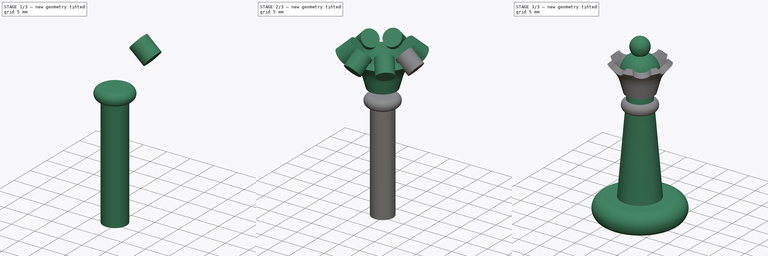
[diagram: build sequence overview — one tinted view per stage of 3, left to right]
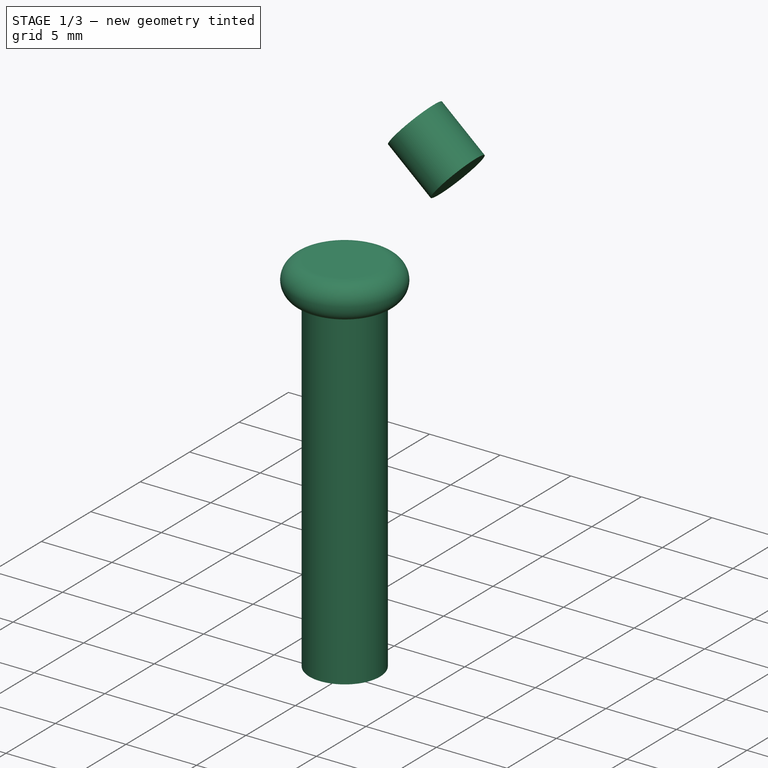
[diagram: stage 1 of 3 — iso view after this stage's code; geometry added in this stage tinted green]
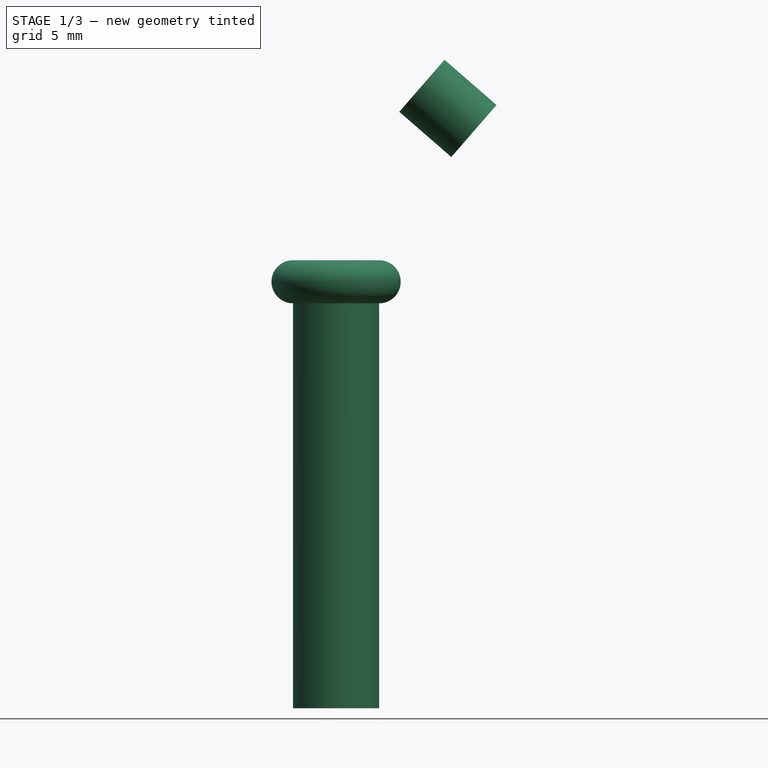
[diagram: stage 1 of 3 — front view after this stage's code; geometry added in this stage tinted green]
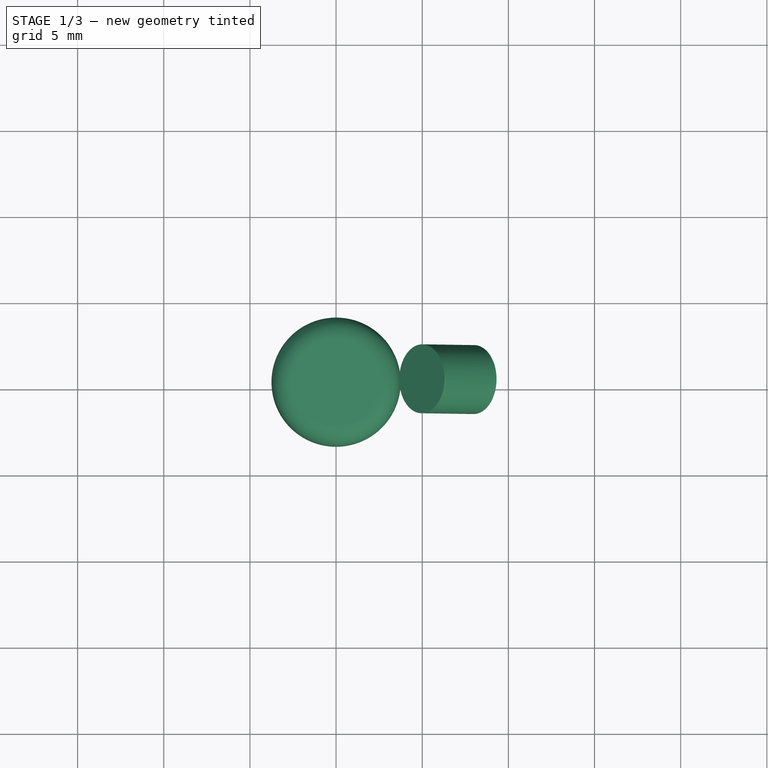
[diagram: stage 1 of 3 — top view after this stage's code; geometry added in this stage tinted green]
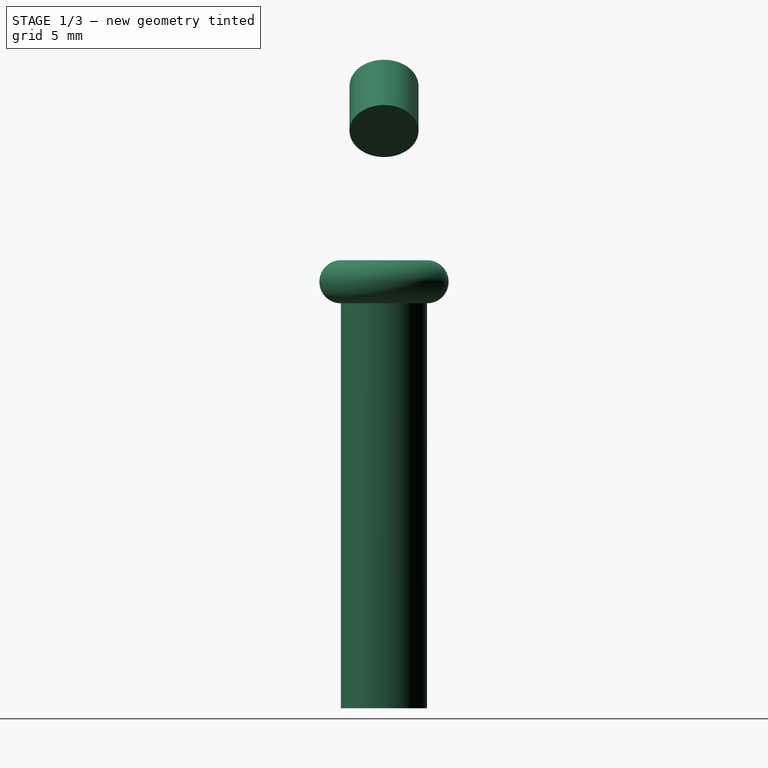
[diagram: stage 1 of 3 — right view after this stage's code; geometry added in this stage tinted green]
FCSTD DOCUMENT  (FreeCAD 0.16R4699 (Git))
Label: queen-v001
License: All rights reserved
LicenseURL: http://en.wikipedia.org/wiki/All_rights_reserved
objects: Sketcher::SketchObject×3, PartDesign::Revolution×3, App::MeasureDistance×2, Part::Cylinder×1, Part::FeaturePython×1, Part::Cut×1
note: 12 computed .brp shape members not serialized (recipe doc carries the construction recipe); baked Part::Feature solids carry a one-line shape summary decoded from their .brp

FEATURE [Part::Cylinder] Cylinder
  Angle = 360
  Height = 4
  Placement = pos=(8,0,33.5) rot=(0,-1,0;0.855211rad)
  Radius = 2
FEATURE [Sketcher::SketchObject] Sketch002
  Placement = pos=(0,0,0) rot=(1,0,0;1.5708rad)
  sketch-geometry (6):
    g0: LineSegment StartX=0 StartY=0 StartZ=0 EndX=2.5 EndY=0 EndZ=0
    g1: LineSegment [constr] StartX=2.5 StartY=0 StartZ=0 EndX=2.5 EndY=26 EndZ=0
    g2: LineSegment StartX=2.5 StartY=26 StartZ=0 EndX=0 EndY=26 EndZ=0
    g3: LineSegment StartX=0 StartY=26 StartZ=0 EndX=0 EndY=0 EndZ=0
    g4: ArcOfCircle CenterX=2.5 CenterY=24.75 CenterZ=0 NormalX=0 NormalY=0 NormalZ=1 Radius=1.25 StartAngle=4.71239 EndAngle=7.85398
    g5: LineSegment StartX=2.5 StartY=23.5 StartZ=0 EndX=2.5 EndY=0 EndZ=0
  constraints (17):
    c: Coincident(g0,g1)
    c: Coincident(g1,g2)
    c: Coincident(g2,g3)
    c: Coincident(g3,g0)
    c: Horizontal(g0)
    c: Horizontal(g2)
    c: Vertical(g1)
    c: Vertical(g3)
    c: Coincident(g0,g-1)
    c: DistanceY(g3) = -26
    c: DistanceX(g2) = -2.5
    c: PointOnObject(g4,g1)
    c: Coincident(g4,g1)
    c: PointOnObject(g4,g1)
    c: DistanceY(g4,g1) = 2.5
    c: Coincident(g5,g4)
    c: Coincident(g5,g0)
FEATURE [PartDesign::Revolution] Revolution002
  Angle = 360
  Axis = (0,0,1)
  Base = (0,0,0)
  Placement = pos=(0,0,0) rot=(1,0,0;1.5708rad)
  ReferenceAxis = -> Sketch002 [V_Axis]
  Sketch = -> Sketch002
FEATURE [App::MeasureDistance] Distance  label="Distance: 39.923"
  Distance = 39.923
  P1 = (0.282425,-0.326548,39.3633)
  P2 = (0.439534,-6.98619,-8.32818e-07)
FEATURE [App::MeasureDistance] Distance001  label="Distance: 18.811"
  Distance = 18.8106
  P1 = (-9.22482,-1.87664,2.32095)
  P2 = (9.49023,-3.06871e-07,2.57422)
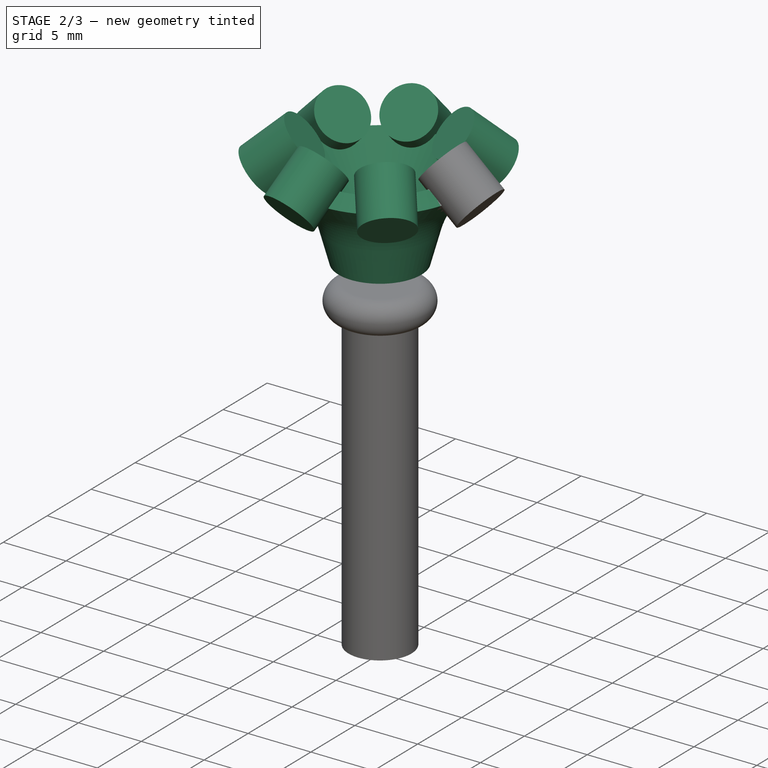
[diagram: stage 2 of 3 — iso view after this stage's code; geometry added in this stage tinted green]
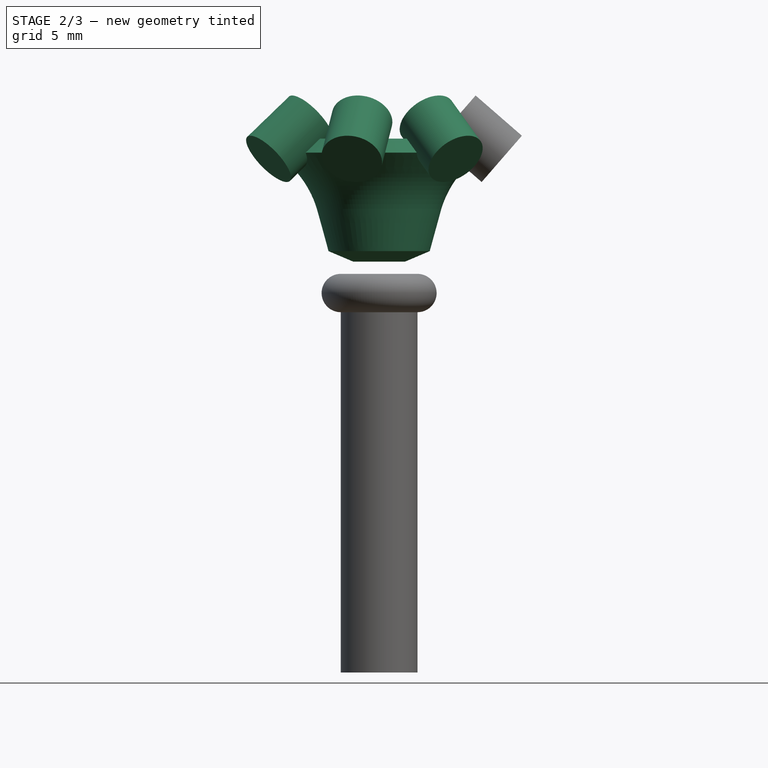
[diagram: stage 2 of 3 — front view after this stage's code; geometry added in this stage tinted green]
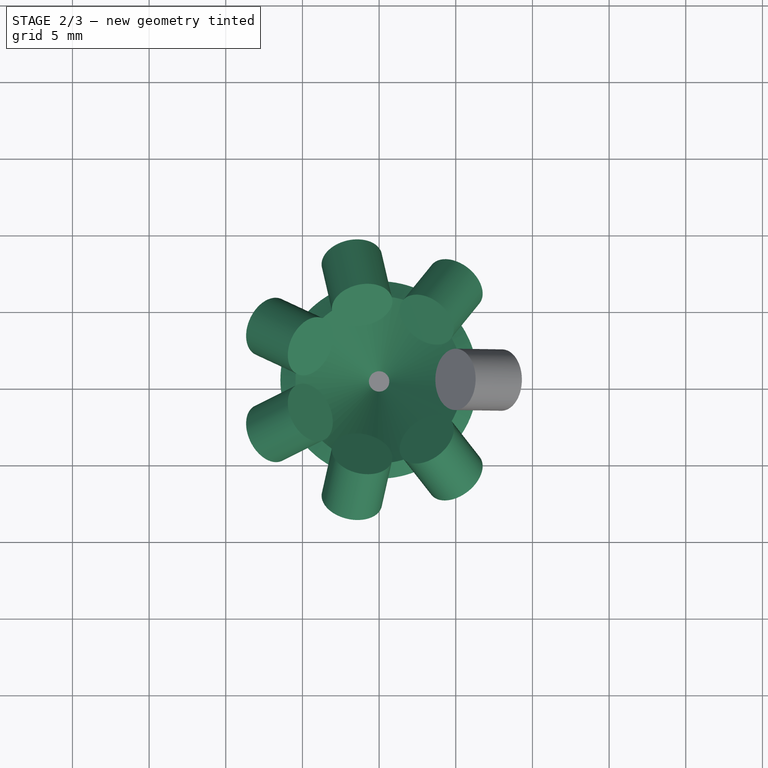
[diagram: stage 2 of 3 — top view after this stage's code; geometry added in this stage tinted green]
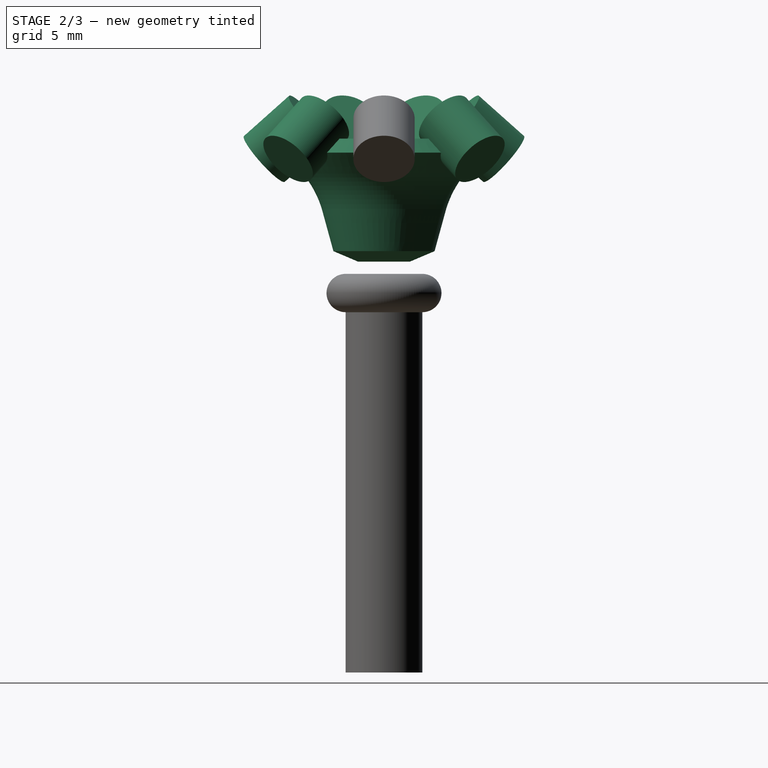
[diagram: stage 2 of 3 — right view after this stage's code; geometry added in this stage tinted green]
FEATURE [Sketcher::SketchObject] Sketch001
  Placement = pos=(0,0,0) rot=(1,0,0;1.5708rad)
  sketch-geometry (7):
    g0: LineSegment StartX=5.45034 StartY=34.8175 StartZ=0 EndX=6.43773 EndY=33.9113 EndZ=0
    g1: LineSegment StartX=0.665482 StartY=28.4264 StartZ=0 EndX=5.45034 EndY=34.8175 EndZ=0
    g2: LineSegment StartX=5.30057 StartY=32.544 StartZ=0 EndX=6.43773 EndY=33.9113 EndZ=0
    g3: ArcOfCircle CenterX=10.3814 CenterY=28.3184 CenterZ=0 NormalX=0 NormalY=0 NormalZ=1 Radius=6.60836 StartAngle=2.44782 EndAngle=2.89671
    g4: LineSegment StartX=0.665482 StartY=28.4264 StartZ=0 EndX=1.68594 EndY=26.7963 EndZ=0
    g5: LineSegment StartX=1.68594 StartY=26.7963 StartZ=0 EndX=3.30092 EndY=27.4826 EndZ=0
    g6: LineSegment StartX=3.97015 StartY=29.9205 StartZ=0 EndX=3.30092 EndY=27.4826 EndZ=0
  constraints (21):
    c: Coincident(g1,g0)
    c: Coincident(g2,g0)
    c: Tangent(g2,g3) = 1.5708
    c: Coincident(g4,g5)
    c: DistanceX(g4) = 1.68594
    c: DistanceY(g4) = 26.7963
    c: DistanceX(g5) = 3.30092
    c: DistanceY(g5) = 27.4826
    c: DistanceX(g1) = 0.665482
    c: DistanceY(g1) = 28.4264
    c: DistanceX(g0) = 5.45034
    c: DistanceY(g0) = 34.8175
    c: DistanceX(g0) = 6.43773
    c: DistanceY(g0) = 33.9113
    c: DistanceX(g3) = 10.3814
    c: DistanceY(g3) = 28.3184
    c: Coincident(g4,g1)
    c: Coincident(g6,g3)
    c: Coincident(g6,g5)
    c: DistanceX(g3) = 3.97015
    c: DistanceY(g3) = 29.9205
FEATURE [PartDesign::Revolution] Revolution001
  Angle = 360
  Axis = (0,0,1)
  Base = (0,0,0)
  Placement = pos=(0,0,0) rot=(1,0,0;1.5708rad)
  ReferenceAxis = -> Sketch001 [V_Axis]
  Reversed = true
  Sketch = -> Sketch001
FEATURE [Part::FeaturePython] Array  # Draft array (typed FeaturePython)
  Angle = 360
  ArrayType = 1
  Axis = (0,0,1)
  Base = -> Cylinder
  Center = (0,0,0)
  Fuse = false
  IntervalAxis = (0,0,0)
  IntervalX = (1,0,0)
  IntervalY = (0,1,0)
  IntervalZ = (0,0,0)
  NumberPolar = 7
  NumberX = 2
  NumberY = 2
  NumberZ = 1
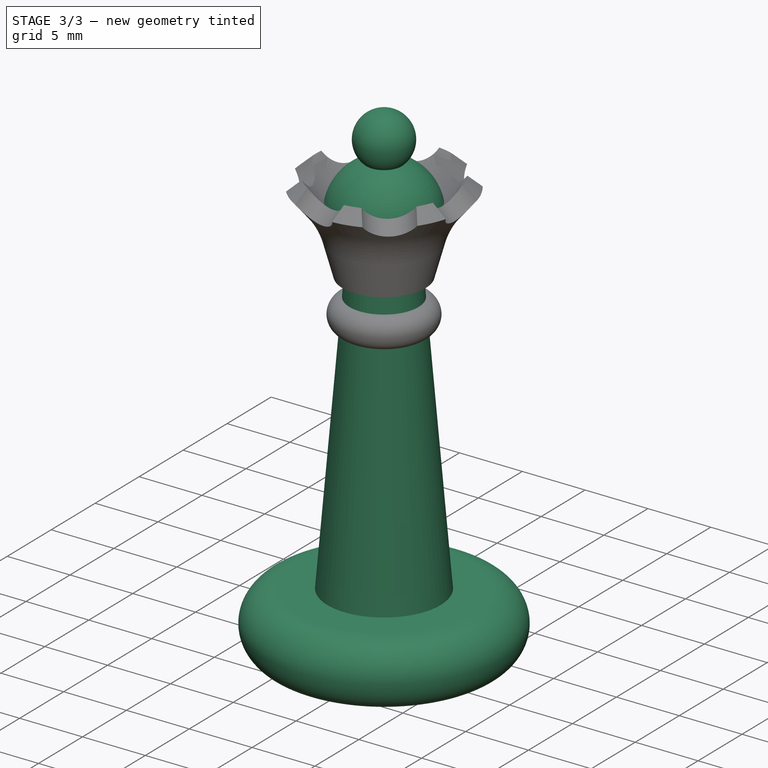
[diagram: stage 3 of 3 — iso view after this stage's code; geometry added in this stage tinted green]
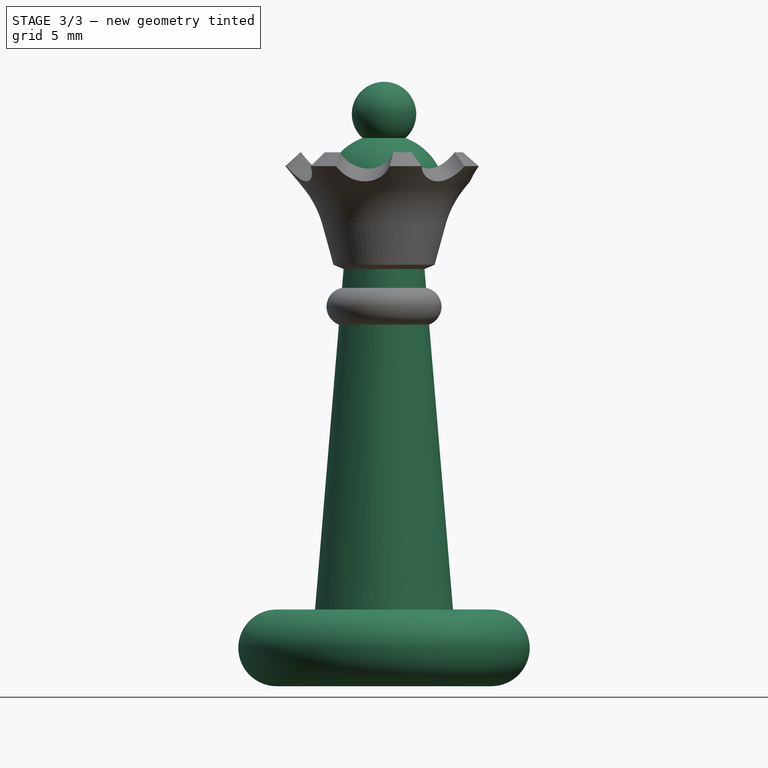
[diagram: stage 3 of 3 — front view after this stage's code; geometry added in this stage tinted green]
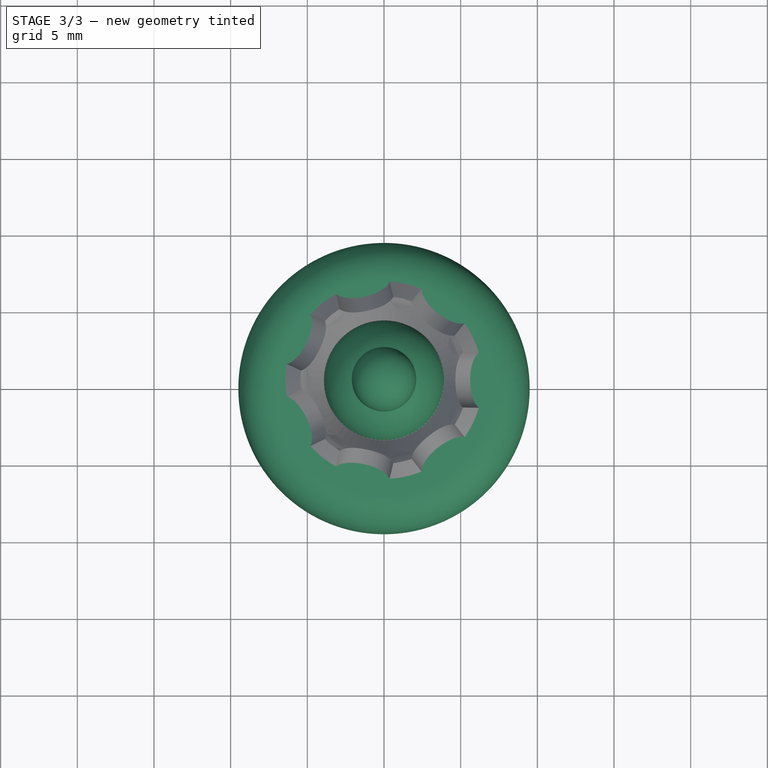
[diagram: stage 3 of 3 — top view after this stage's code; geometry added in this stage tinted green]
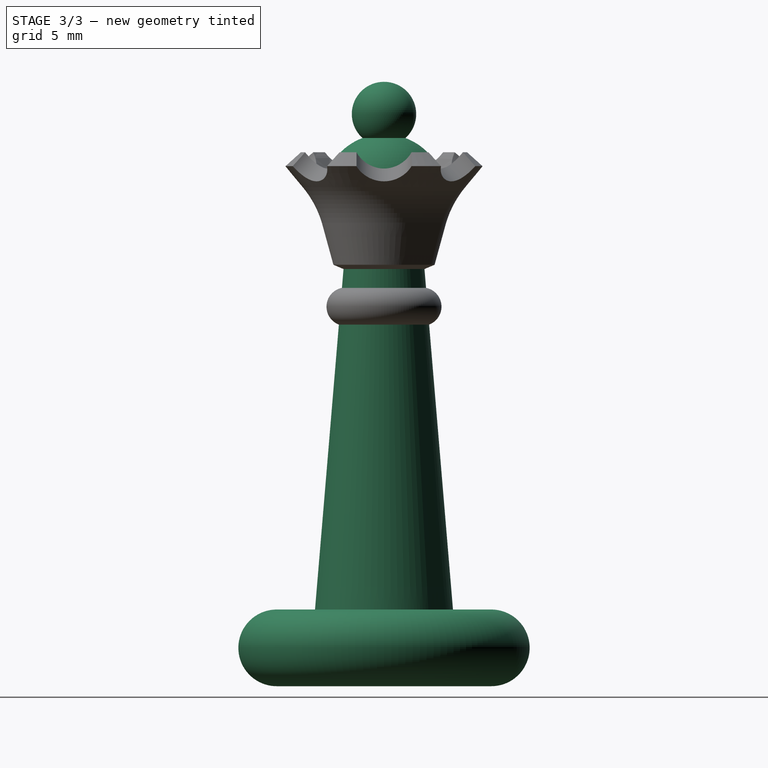
[diagram: stage 3 of 3 — right view after this stage's code; geometry added in this stage tinted green]
FEATURE [Sketcher::SketchObject] Sketch
  Placement = pos=(0,0,0) rot=(1,0,0;1.5708rad)
  sketch-geometry (10):
    g0: LineSegment StartX=0 StartY=0 StartZ=0 EndX=7 EndY=0 EndZ=0
    g1: LineSegment [constr] StartX=7 StartY=0 StartZ=0 EndX=7 EndY=5 EndZ=0
    g2: LineSegment StartX=7 StartY=5 StartZ=0 EndX=0 EndY=5 EndZ=0
    g3: LineSegment StartX=0 StartY=5 StartZ=0 EndX=0 EndY=0 EndZ=0
    g4: LineSegment StartX=0 StartY=5 StartZ=0 EndX=4.5 EndY=5 EndZ=0
    g5: LineSegment StartX=4.5 StartY=5 StartZ=0 EndX=2.5 EndY=28.8775 EndZ=0
    g6: ArcOfCircle CenterX=7 CenterY=2.5 CenterZ=0 NormalX=0 NormalY=0 NormalZ=1 Radius=2.5 StartAngle=4.71239 EndAngle=7.85398
    g7: ArcOfCircle CenterX=0 CenterY=32 CenterZ=0 NormalX=0 NormalY=0 NormalZ=1 Radius=4 StartAngle=5.38752 EndAngle=7.49641
    g8: LineSegment StartX=0 StartY=5 StartZ=0 EndX=0 EndY=39.4122 EndZ=0
    g9: ArcOfCircle CenterX=0 CenterY=37.3122 CenterZ=0 NormalX=0 NormalY=0 NormalZ=1 Radius=2.1 StartAngle=5.44212 EndAngle=7.85398
  constraints (31):
    c: Coincident(g0,g1)
    c: Coincident(g1,g2)
    c: Coincident(g2,g3)
    c: Coincident(g3,g0)
    c: Horizontal(g0)
    c: Horizontal(g2)
    c: Vertical(g1)
    c: Vertical(g3)
    c: Coincident(g0,g-1)
    c: Coincident(g4,g5)
    c: Horizontal(g4)
    c: Coincident(g4,g2)
    c: DistanceX(g0) = 7
    c: DistanceY(g1) = 5
    c: Coincident(g6,g1)
    c: Coincident(g6,g0)
    c: PointOnObject(g6,g1)
    c: PointOnObject(g8,g-2)
    c: Radius(g7) = 4
    c: Coincident(g5,g7)
    c: DistanceX(g4,g2) = -4.5
    c: Coincident(g8,g2)
    c: Perpendicular(g7,g8)
    c: DistanceY(g-1,g7) = 32
    c: DistanceX(g8,g5) = 2.5
    c: PointOnObject(g9,g-2)
    c: Radius(g9) = 2.1
    c: PointOnObject(g9,g-2)
    c: Coincident(g7,g9)
    c: DistanceX(g7,g9) = -1.4
    c: Coincident(g9,g8)
FEATURE [PartDesign::Revolution] Revolution
  Angle = 360
  Axis = (0,0,1)
  Base = (0,0,0)
  Placement = pos=(0,0,0) rot=(1,0,0;1.5708rad)
  ReferenceAxis = -> Sketch [V_Axis]
  Reversed = true
  Sketch = -> Sketch
FEATURE [Part::Cut] Cut
  Base = -> Revolution001
  Tool = -> Array
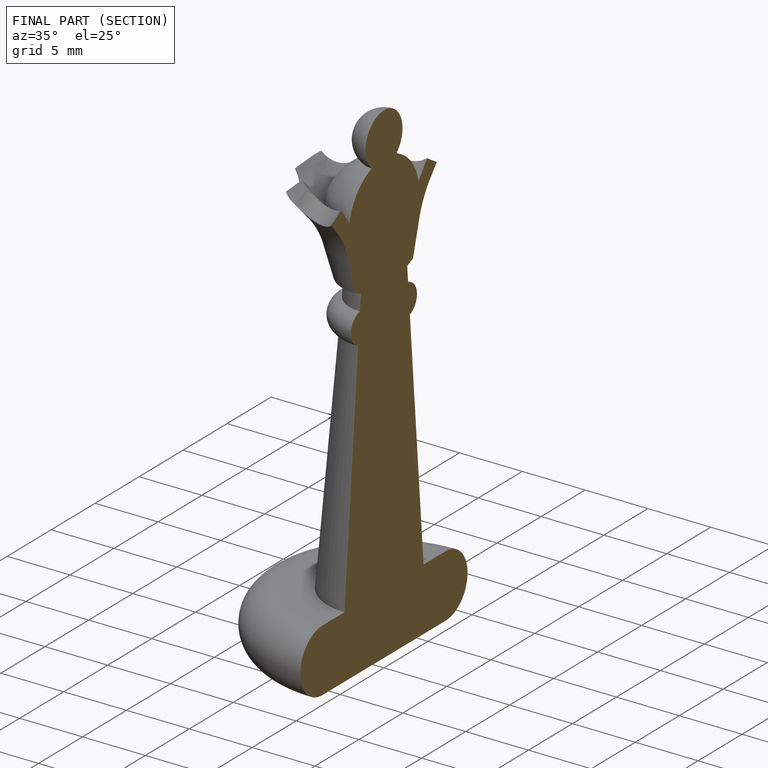
[diagram: finished part — half-section view (interior)]
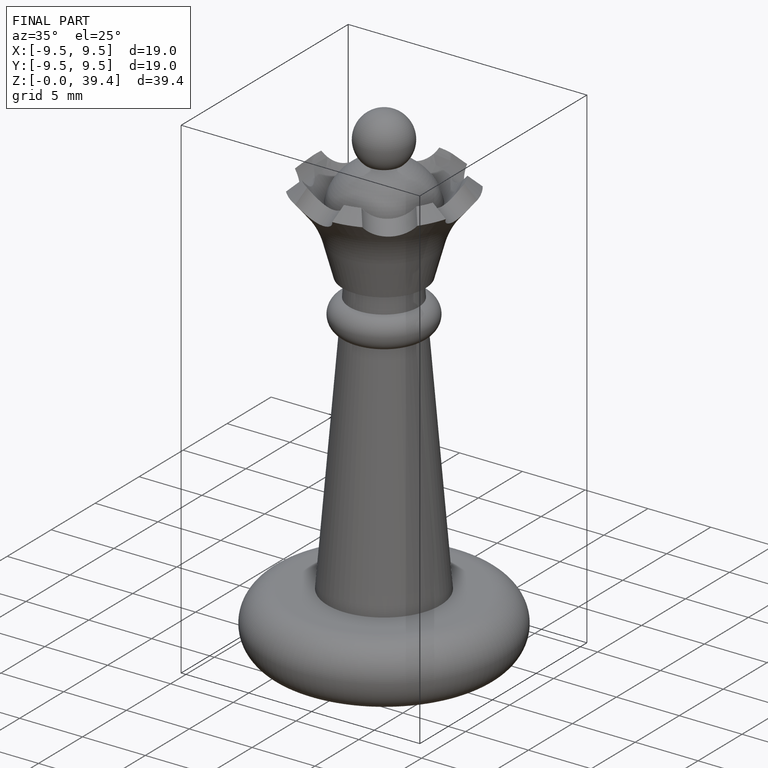
[diagram: finished part — iso view with bounding-box wireframe]
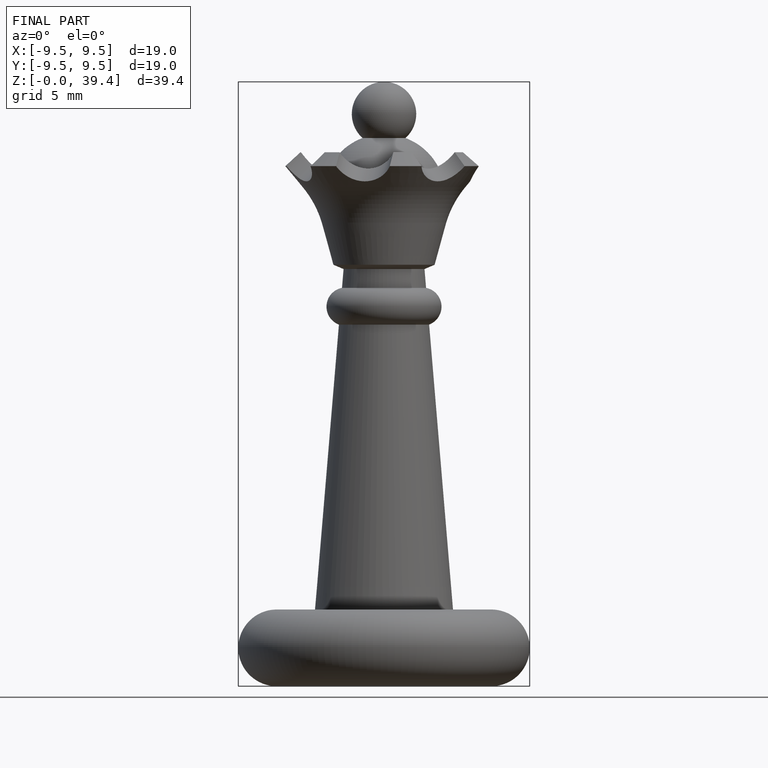
[diagram: finished part — front view with bounding-box wireframe]
